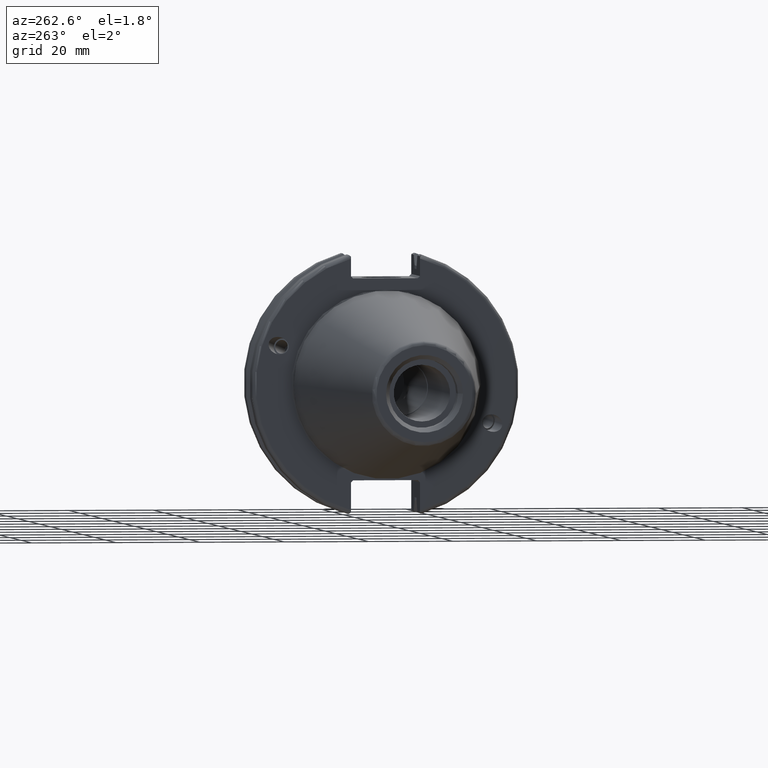
[diagram: clean part render]
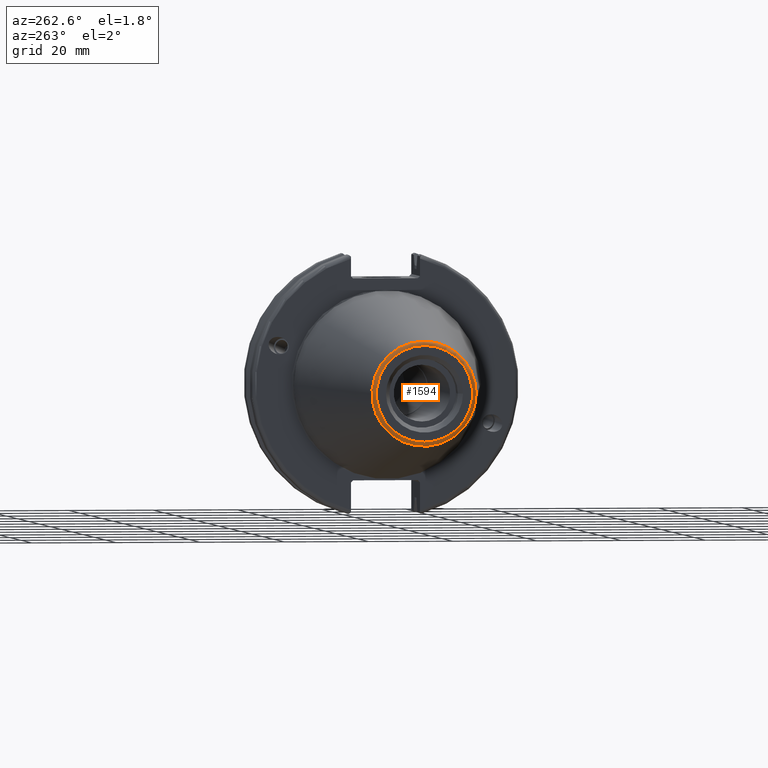
[diagram: same view with one face highlighted and labeled with its STEP entity id]
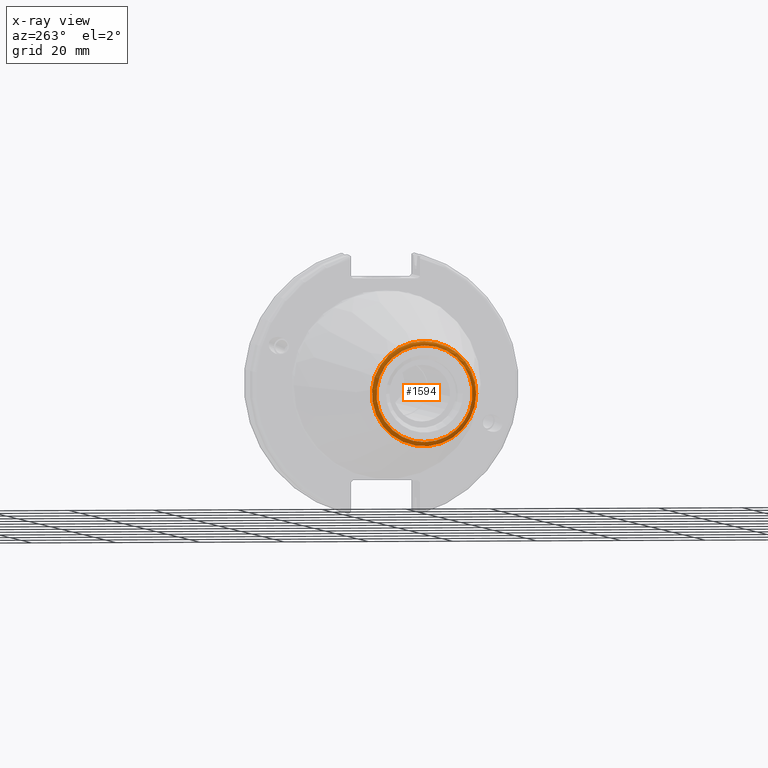
[diagram: x-ray of the same camera — body ghosted, the highlighted face saturated]
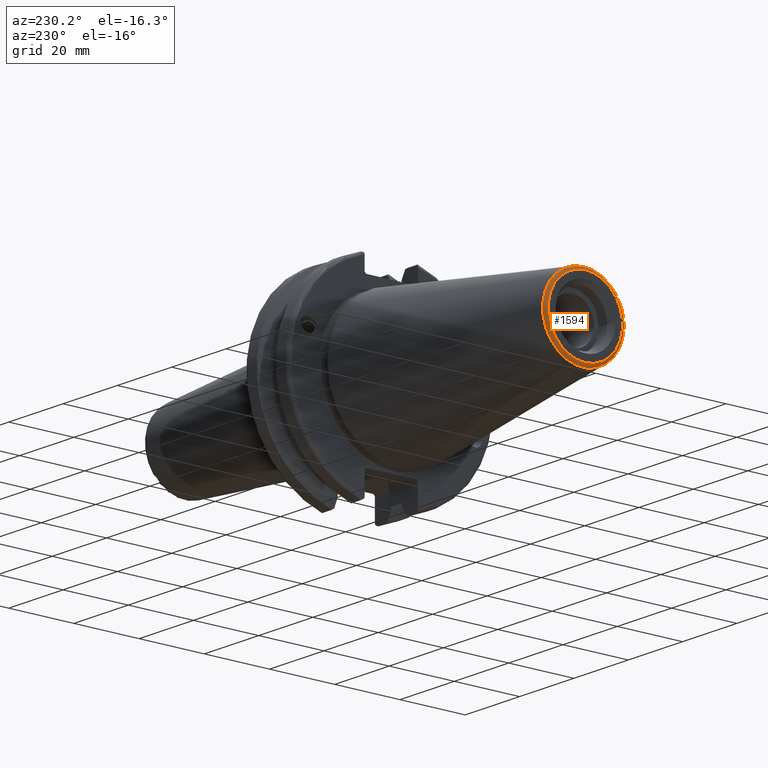
[diagram: same view with one face highlighted and labeled with its STEP entity id]
A machine part, auxiliary view. The second image highlights one B-rep face of the part: STEP entity #1594.
The next image is the same camera in x-ray: the body ghosted, the highlighted face saturated — about 0% of this face is hidden behind the body in this view.
A second angle (auxiliary view) of the same face is appended — the face is thin or edge-on in the first view.
In plain terms, the highlighted toroidal blend (fillet) surface has major radius 11.4071 mm and minor (blend) radius 1 mm.
Its self-contained STEP definition (entity closure, byte-faithful):
#434=FACE_OUTER_BOUND('',#542,.T.);
#542=EDGE_LOOP('',(#1385,#1386,#1387,#1388,#1389));
#636=CIRCLE('',#1790,12.3966635780937);
#637=CIRCLE('',#1791,12.3966635780937);
#638=CIRCLE('',#1792,1.);
#639=CIRCLE('',#1793,11.4071305970304);
#795=VERTEX_POINT('',#3016);
#796=VERTEX_POINT('',#3017);
#797=VERTEX_POINT('',#3020);
#1009=EDGE_CURVE('',#795,#796,#636,.T.);
#1010=EDGE_CURVE('',#796,#795,#637,.T.);
#1011=EDGE_CURVE('',#795,#797,#638,.T.);
#1012=EDGE_CURVE('',#797,#797,#639,.T.);
#1385=ORIENTED_EDGE('',*,*,#1009,.T.);
#1386=ORIENTED_EDGE('',*,*,#1010,.T.);
#1387=ORIENTED_EDGE('',*,*,#1011,.T.);
#1388=ORIENTED_EDGE('',*,*,#1012,.T.);
#1389=ORIENTED_EDGE('',*,*,#1011,.F.);
#1532=TOROIDAL_SURFACE('',#1789,11.4071305970304,1.);
#1594=ADVANCED_FACE('',(#434),#1532,.T.);
#1789=AXIS2_PLACEMENT_3D('',#3015,#2196,#2197);
#1790=AXIS2_PLACEMENT_3D('',#3018,#2198,#2199);
#1791=AXIS2_PLACEMENT_3D('',#3019,#2200,#2201);
#1792=AXIS2_PLACEMENT_3D('',#3021,#2202,#2203);
#1793=AXIS2_PLACEMENT_3D('',#3022,#2204,#2205);
#2196=DIRECTION('center_axis',(1.,0.,0.));
#2197=DIRECTION('ref_axis',(0.,0.,-1.));
#2198=DIRECTION('center_axis',(-1.,0.,0.));
#2199=DIRECTION('ref_axis',(0.,-1.,3.06161699786838E-17));
#2200=DIRECTION('center_axis',(-1.,0.,0.));
#2201=DIRECTION('ref_axis',(0.,-1.,3.06161699786838E-17));
#2202=DIRECTION('center_axis',(0.,-1.,-1.22464679914735E-16));
#2203=DIRECTION('ref_axis',(0.,-1.22464679914735E-16,1.));
#2204=DIRECTION('center_axis',(1.,0.,0.));
#2205=DIRECTION('ref_axis',(0.,-1.,1.83697019872103E-16));
#3015=CARTESIAN_POINT('Origin',(-67.25,0.,0.));
#3016=CARTESIAN_POINT('',(-67.3943068930717,-1.5181534371019E-15,12.3966635780937));
#3017=CARTESIAN_POINT('',(-67.3943068930718,-12.3966635780937,-1.5181534371019E-15));
#3018=CARTESIAN_POINT('Origin',(-67.3943068930717,0.,-1.89769179637738E-15));
#3019=CARTESIAN_POINT('Origin',(-67.3943068930717,0.,-1.89769179637738E-15));
#3020=CARTESIAN_POINT('',(-68.25,-1.39697059731091E-15,11.4071305970304));
#3021=CARTESIAN_POINT('Origin',(-67.25,-1.39697059731091E-15,11.4071305970304));
#3022=CARTESIAN_POINT('Origin',(-68.25,0.,0.));